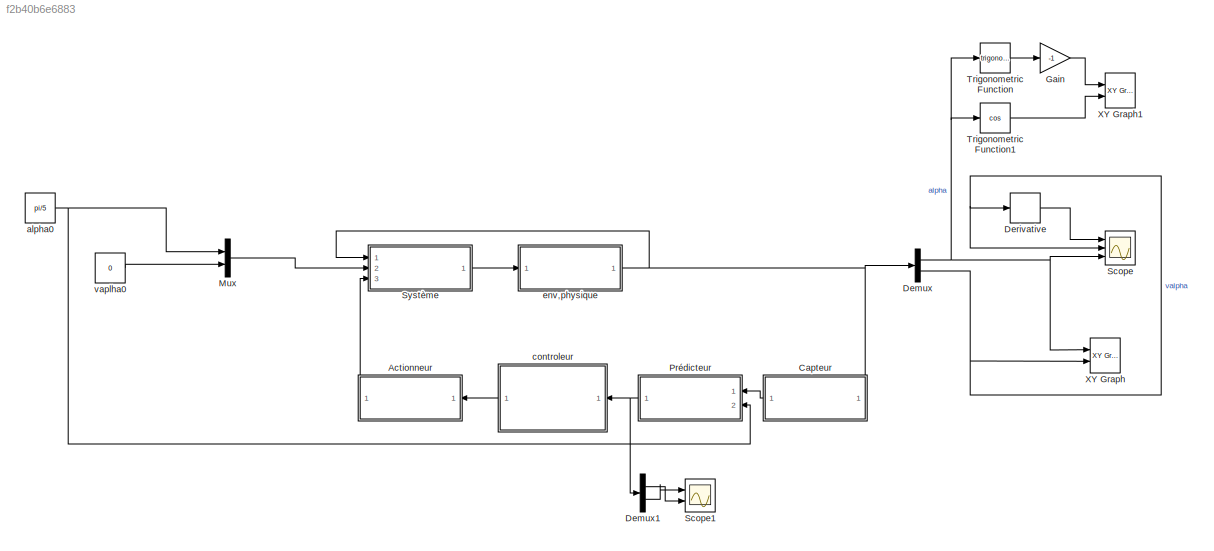
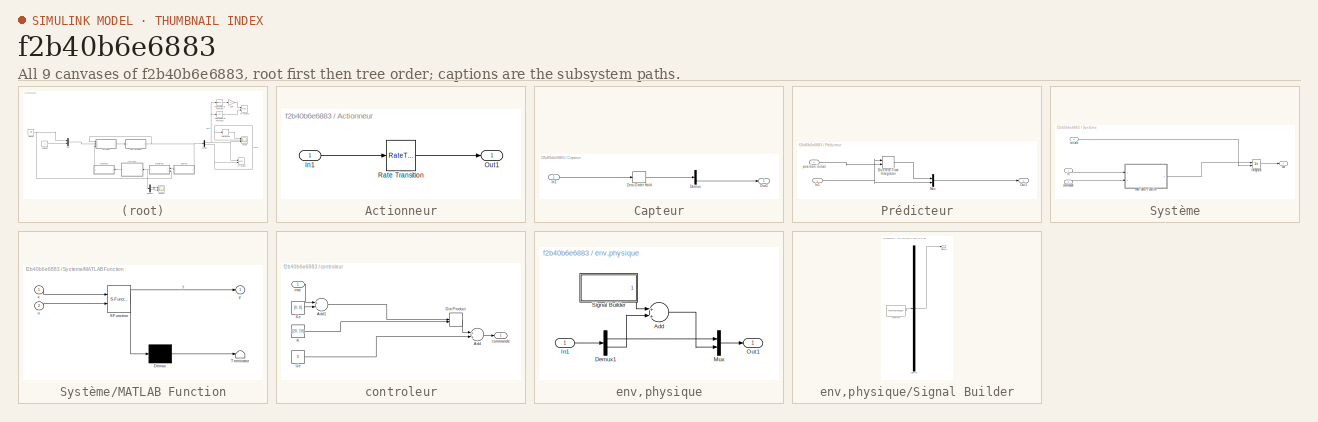
[diagram: thumbnail index - all 9 canvases of the model, root first then tree order]
MODEL slx_f2b40b6e6883
KIND model
CONFIG AbsTol = auto
CONFIG FixedStep = 4*pi*sqrt(10/9.81) / 500
CONFIG MaxStep = auto
CONFIG MinStep = auto
CONFIG RelTol = 1e-6
CONFIG SampleTimeConstraint = Unconstrained
CONFIG Solver = VariableStepAuto
CONFIG SolverMode = Auto
CONFIG SolverName = VariableStepAuto
CONFIG StartTime = 0.0
CONFIG StopTime = 2*4*pi*sqrt(10/9.81)
BLOCK [SubSystem] Actionneur
  Ports = [1, 1]
  RequestExecContextInheritance = off
  Variant = off
BLOCK [Inport] Actionneur/In1
  IconDisplay = Port number
BLOCK [Outport] Actionneur/Out1
  IconDisplay = Port number
BLOCK [RateTransition] Actionneur/Rate Transition
  X0 = -1
BLOCK [SubSystem] Capteur
  Ports = [1, 1]
  RequestExecContextInheritance = off
  Variant = off
BLOCK [Demux] Capteur/Demux
  DisplayOption = bar
  Outputs = 2
  Ports = [1, 2]
BLOCK [Inport] Capteur/In1
  IconDisplay = Port number
BLOCK [Outport] Capteur/Out1
  IconDisplay = Port number
BLOCK [ZeroOrderHold] Capteur/Zero-Order Hold
  SampleTime = 4*pi*sqrt(10/9.81) / 500
BLOCK [Demux] Demux
  DisplayOption = bar
  Outputs = 2
  Ports = [1, 2]
BLOCK [Demux] Demux1
  DisplayOption = bar
  Outputs = 2
  Ports = [1, 2]
BLOCK [Derivative] Derivative
BLOCK [Gain] Gain
  Gain = -1
  OutDataTypeStr = Inherit: Inherit via internal rule
  ParamDataTypeStr = Inherit: Inherit via internal rule
  SaturateOnIntegerOverflow = off
BLOCK [Mux] Mux
  DisplayOption = bar
  Inputs = 2
  Ports = [2, 1]
BLOCK [SubSystem] Prédicteur
  Ports = [2, 1]
  RequestExecContextInheritance = off
  Variant = off
BLOCK [DiscreteIntegrator] Prédicteur/Discrete-Time Integrator
  ICPrevOutput = DiscIntNeverNeededParam
  ICPrevScaledInput = DiscIntNeverNeededParam
  InitialConditionSetting = State (most efficient)
  InitialConditionSource = external
  Ports = [2, 1]
  SampleTime = -1
BLOCK [Inport] Prédicteur/In1
  IconDisplay = Port number
BLOCK [Mux] Prédicteur/Mux
  DisplayOption = bar
  Inputs = 2
  Ports = [2, 1]
BLOCK [Outport] Prédicteur/Out1
  IconDisplay = Port number
BLOCK [Inport] Prédicteur/position initial
  IconDisplay = Port number
  Port = 2
BLOCK [Scope] Scope
  NumInputPorts = 3
  Ports = [3]
  ScopeSpecificationString = Simulink.scopes.TimeScopeBlockCfg('CurrentConfiguration', extmgr.ConfigurationSet(extmgr.Configuration('Core','General UI',true),extmgr.Configuration('Core','Source UI',true),extmgr.Configuration('Sources','WiredSimulink',true),extmgr.Configuration('Visuals','Time Domain',true,'SerializedDisplays',{struct('MinYLimReal','-8686141859431.04492','MaxYLimReal','8686141859430.47266','YLabelReal','','Min...<+2805ch>
BLOCK [Scope] Scope1
  NumInputPorts = 2
  Ports = [2]
  ScopeSpecificationString = Simulink.scopes.TimeScopeBlockCfg('CurrentConfiguration', extmgr.ConfigurationSet(extmgr.Configuration('Core','General UI',true),extmgr.Configuration('Core','Source UI',true),extmgr.Configuration('Sources','WiredSimulink',true,'DataLoggingVariableName','ScopeData1'),extmgr.Configuration('Visuals','Time Domain',true,'SerializedDisplays',{struct('MinYLimReal','-0.74836','MaxYLimReal','0.96464','YLab...<+2067ch>
BLOCK [SubSystem] Système
  Ports = [3, 1]
  RequestExecContextInheritance = off
  Variant = off
BLOCK [Integrator] Système/Integrator
  InitialConditionSource = external
  Ports = [2, 1]
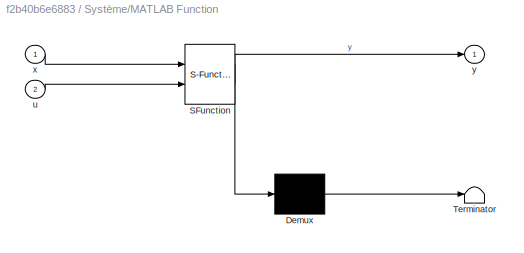
BLOCK [SubSystem] Système/MATLAB Function
  ErrorFcn = Stateflow.Translate.translate
  PermitHierarchicalResolution = ExplicitOnly
  Ports = [2, 1]
  RTWSystemCode = Inline
  RequestExecContextInheritance = off
  SFBlockType = MATLAB Function
  TreatAsAtomicUnit = on
  Variant = off
BLOCK [Demux] Système/MATLAB Function/ Demux 
  Outputs = 1
  Ports = [1, 1]
BLOCK [S-Function] Système/MATLAB Function/ SFunction 
  EnableBusSupport = on
  FunctionName = sf_sfun
  PortCounts = [2 2]
  Ports = [2, 2]
  SFunctionDeploymentMode = off
  Tag = Stateflow S-Function TP4 2
BLOCK [Terminator] Système/MATLAB Function/ Terminator 
BLOCK [Inport] Système/MATLAB Function/u
  IconDisplay = Port number
  Port = 2
BLOCK [Inport] Système/MATLAB Function/x
  IconDisplay = Port number
BLOCK [Outport] Système/MATLAB Function/y
  IconDisplay = Port number
BLOCK [Inport] Système/commande
  IconDisplay = Port number
  Port = 3
BLOCK [Inport] Système/in
  IconDisplay = Port number
BLOCK [Inport] Système/initiale
  IconDisplay = Port number
  Port = 2
BLOCK [Outport] Système/out
  IconDisplay = Port number
BLOCK [Trigonometry] Trigonometric Function
  Ports = [1, 1]
BLOCK [Trigonometry] Trigonometric Function1
  Operator = cos
  Ports = [1, 1]
BLOCK [Reference] XY Graph  REF=simulink/Sinks/XY Graph
  Ports = [2]
  SourceBlock = simulink/Sinks/XY Graph
  SourceType = XY scope.
BLOCK [Reference] XY Graph1  REF=simulink/Sinks/XY Graph
  Ports = [2]
  SourceBlock = simulink/Sinks/XY Graph
  SourceType = XY scope.
BLOCK [Constant] alpha0
  Value = pi/5
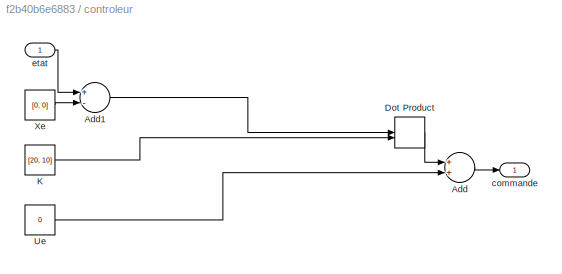
BLOCK [SubSystem] controleur
  Ports = [1, 1]
  RequestExecContextInheritance = off
  Variant = off
BLOCK [Sum] controleur/Add
  InputSameDT = off
  OutDataTypeStr = Inherit: Inherit via internal rule
  Ports = [2, 1]
  SaturateOnIntegerOverflow = off
BLOCK [Sum] controleur/Add1
  InputSameDT = off
  Inputs = +-
  OutDataTypeStr = Inherit: Inherit via internal rule
  Ports = [2, 1]
  SaturateOnIntegerOverflow = off
BLOCK [DotProduct] controleur/Dot Product
  OutDataTypeStr = Inherit: Inherit via internal rule
BLOCK [Constant] controleur/K
  Value = [20, 10]
BLOCK [Constant] controleur/Ue
  Value = 0
BLOCK [Constant] controleur/Xe
  Value = [0, 0]
BLOCK [Outport] controleur/commande
  IconDisplay = Port number
BLOCK [Inport] controleur/etat
  IconDisplay = Port number
BLOCK [SubSystem] env,physique
  Ports = [1, 1]
  RequestExecContextInheritance = off
  Variant = off
BLOCK [Sum] env,physique/Add
  InputSameDT = off
  OutDataTypeStr = Inherit: Inherit via internal rule
  Ports = [2, 1]
  SaturateOnIntegerOverflow = off
BLOCK [Demux] env,physique/Demux1
  DisplayOption = bar
  Outputs = 2
  Ports = [1, 2]
BLOCK [Inport] env,physique/In1
  IconDisplay = Port number
BLOCK [Mux] env,physique/Mux
  DisplayOption = bar
  Inputs = 2
  Ports = [2, 1]
BLOCK [Outport] env,physique/Out1
  IconDisplay = Port number
BLOCK [SubSystem] env,physique/Signal Builder
  ClipboardFcn = sigbuilder_block('clipboard');
  CloseFcn = sigbuilder_block('close');
  ContinueFcn = sigbuilder_block('continue');
  CopyFcn = sigbuilder_block('copy');
  DeleteFcn = sigbuilder_block('delete');
  LoadFcn = sigbuilder_block('load',[431.242 185.684 556.295 392.589 ]);
  MaskHideContents = on
  ModelCloseFcn = sigbuilder_block('modelClose');
  NameChangeFcn = sigbuilder_block('namechange');
  OpenFcn = sigbuilder_block('open',[434.274 196.295 556.295 392.589 ]);
  PauseFcn = sigbuilder_block('pause');
  Ports = [0, 1]
  PreSaveFcn = sigbuilder_block('preSave');
  RequestExecContextInheritance = off
  StartFcn = sigbuilder_block('start');
  StopFcn = sigbuilder_block('stop');
  Tag = STV Subsys
  Variant = off
BLOCK [Demux] env,physique/Signal Builder/Demux
  Outputs = 1
  Ports = [1, 1]
  Tag = STV Demux
BLOCK [FromWorkspace] env,physique/Signal Builder/FromWs
  SampleTime = 0
  Tag = STV FromWs
  VariableName = tuvar
  ZeroCross = on
BLOCK [Outport] env,physique/Signal Builder/Signal 1
  IconDisplay = Port number
  Tag = STV Outport
BLOCK [Constant] vaplha0
  Value = 0
  VectorParams1D = off
LINE Actionneur/In1:1 -> Actionneur/Rate Transition:1
LINE Actionneur/Rate Transition:1 -> Actionneur/Out1:1
LINE Actionneur:1 -> Système:3
LINE Capteur/Demux:2 -> Capteur/Out1:1
LINE Capteur/In1:1 -> Capteur/Zero-Order Hold:1
LINE Capteur/Zero-Order Hold:1 -> Capteur/Demux:1
LINE Capteur:1 -> Prédicteur:1
LINE Demux1:1 -> Scope1:2
LINE Demux1:2 -> Scope1:1
NET Demux:1 -> Scope:3, Trigonometric Function1:1, Trigonometric Function:1, XY Graph:1
NET Demux:2 -> Derivative:1, Scope:2, XY Graph:2
LINE Derivative:1 -> Scope:1
LINE Gain:1 -> XY Graph1:1
LINE Mux:1 -> Système:2
LINE Prédicteur/Discrete-Time Integrator:1 -> Prédicteur/Mux:1
NET Prédicteur/In1:1 -> Prédicteur/Discrete-Time Integrator:1, Prédicteur/Mux:2
LINE Prédicteur/Mux:1 -> Prédicteur/Out1:1
LINE Prédicteur/position initial:1 -> Prédicteur/Discrete-Time Integrator:2
NET Prédicteur:1 -> Demux1:1, controleur:1
LINE Système/Integrator:1 -> Système/out:1
LINE Système/MATLAB Function:1 -> Système/Integrator:1
LINE Système/commande:1 -> Système/MATLAB Function:2
LINE Système/in:1 -> Système/MATLAB Function:1
LINE Système/initiale:1 -> Système/Integrator:2
LINE Système:1 -> env,physique:1
LINE Trigonometric Function1:1 -> XY Graph1:2
LINE Trigonometric Function:1 -> Gain:1
NET alpha0:1 -> Mux:1, Prédicteur:2
LINE controleur/Add1:1 -> controleur/Dot Product:1
LINE controleur/Add:1 -> controleur/commande:1
LINE controleur/Dot Product:1 -> controleur/Add:1
LINE controleur/K:1 -> controleur/Dot Product:2
LINE controleur/Ue:1 -> controleur/Add:2
LINE controleur/Xe:1 -> controleur/Add1:2
LINE controleur/etat:1 -> controleur/Add1:1
LINE controleur:1 -> Actionneur:1
LINE env,physique/Add:1 -> env,physique/Mux:2
LINE env,physique/Demux1:1 -> env,physique/Mux:1
LINE env,physique/Demux1:2 -> env,physique/Add:2
LINE env,physique/In1:1 -> env,physique/Demux1:1
LINE env,physique/Mux:1 -> env,physique/Out1:1
LINE env,physique/Signal Builder:1 -> env,physique/Add:1
NET env,physique:1 -> Capteur:1, Demux:1, Système:1
LINE vaplha0:1 -> Mux:2
note: NET lines group one-source signal fan-out (src -> all destinations, sorted); 1:1 wires keep LINE
CHART Système/MATLAB Function states=1 transitions=1
  STATE_LABEL 'eML_blk_kernel()'
  STATE_LABEL 'SCRIPT:\nfunction y = fcn(x,u)\n\n%% Constantes\n    g = 9.81;\n    l = 10;\n\n%% Calcul\n    y = [ x(2) ; ((g*sin(x(1))/l) - (u * cos(x(1))/l)) ]; '
